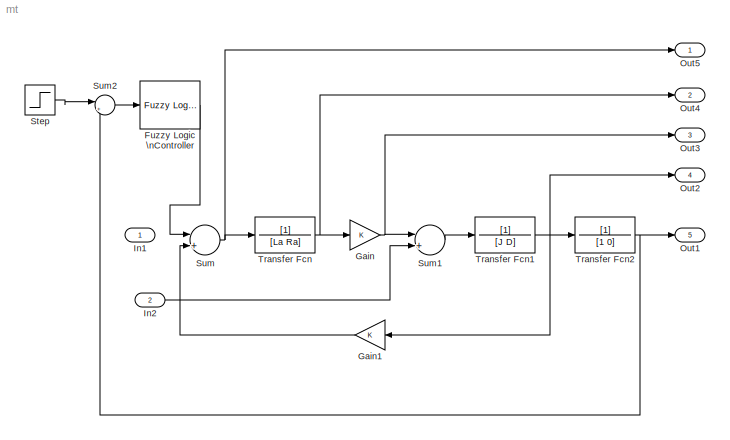
MODEL mt
KIND model
BLOCK [Reference] Fuzzy Logic \nController  REF=fuzblock/Fuzzy Logic \nController  (lib defined in mdl_858b3b3e7478)
  Ports = [1, 1]
  ShowPortLabels = on
  SourceBlock = fuzblock/Fuzzy Logic \nController
  SourceType = FIS
  fis = regP
BLOCK [Gain] Gain
  OutDataTypeMode = Inherit via internal rule
  ParameterDataTypeMode = Inherit via internal rule
  SaturateOnIntegerOverflow = off
BLOCK [Gain] Gain1
  OutDataTypeMode = Inherit via internal rule
  ParameterDataTypeMode = Inherit via internal rule
  SaturateOnIntegerOverflow = off
BLOCK [Inport] In1
  IconDisplay = Port number
  LatchInput = off
  Port = 1
BLOCK [Inport] In2
  IconDisplay = Port number
  LatchInput = off
  Port = 2
BLOCK [Outport] Out1
  BusOutputAsStruct = off
  IconDisplay = Port number
  Port = 5
BLOCK [Outport] Out2
  BusOutputAsStruct = off
  IconDisplay = Port number
  Port = 4
BLOCK [Outport] Out3
  BusOutputAsStruct = off
  IconDisplay = Port number
  Port = 3
BLOCK [Outport] Out4
  BusOutputAsStruct = off
  IconDisplay = Port number
  Port = 2
BLOCK [Outport] Out5
  BusOutputAsStruct = off
  IconDisplay = Port number
BLOCK [Step] Step
  SampleTime = 0
BLOCK [Sum] Sum
  InputSameDT = off
  Inputs = |+-
  OutDataTypeMode = Inherit via internal rule
  Ports = [2, 1]
  SaturateOnIntegerOverflow = off
BLOCK [Sum] Sum1
  InputSameDT = off
  Inputs = |+-
  OutDataTypeMode = Inherit via internal rule
  Ports = [2, 1]
  SaturateOnIntegerOverflow = off
BLOCK [Sum] Sum2
  IconShape = round
  InputSameDT = off
  Inputs = |+-
  OutDataTypeMode = Inherit via internal rule
  Ports = [2, 1]
  SaturateOnIntegerOverflow = off
BLOCK [TransferFcn] Transfer Fcn
  Denominator = [La Ra]
BLOCK [TransferFcn] Transfer Fcn1
  Denominator = [J D]
BLOCK [TransferFcn] Transfer Fcn2
  Denominator = [1 0]
LINE Fuzzy Logic \nController:1 -> Sum:1
LINE Gain1:1 -> Sum:2
NET Gain:1 -> Out3:1, Sum1:1
LINE In2:1 -> Sum1:2
LINE Step:1 -> Sum2:1
LINE Sum1:1 -> Transfer Fcn1:1
LINE Sum2:1 -> Fuzzy Logic \nController:1
NET Sum:1 -> Out5:1, Transfer Fcn:1
NET Transfer Fcn1:1 -> Gain1:1, Out2:1, Transfer Fcn2:1
NET Transfer Fcn2:1 -> Out1:1, Sum2:2
NET Transfer Fcn:1 -> Gain:1, Out4:1
note: NET lines group one-source signal fan-out (src -> all destinations, sorted); 1:1 wires keep LINE
